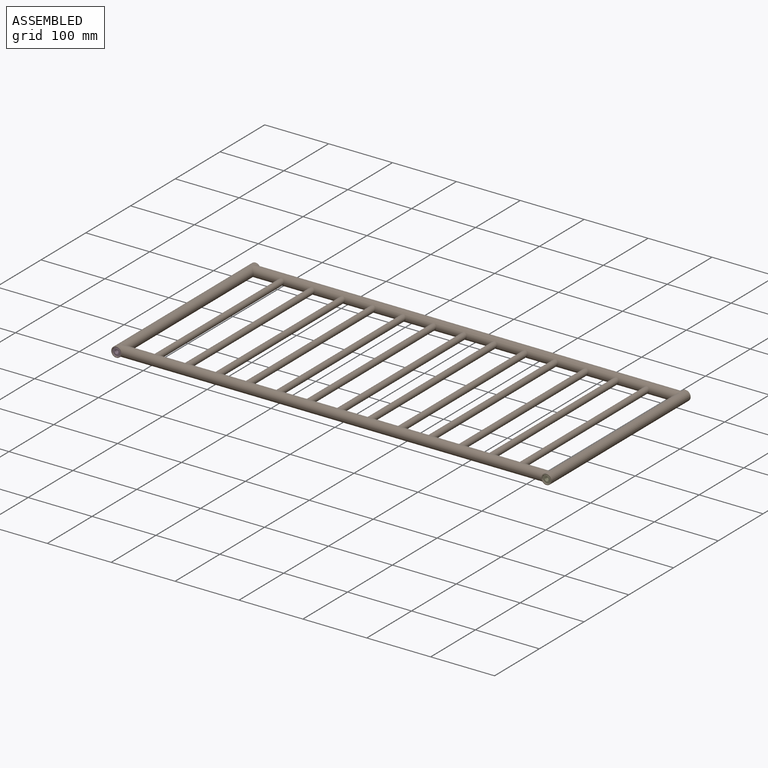
[diagram: assembled view]
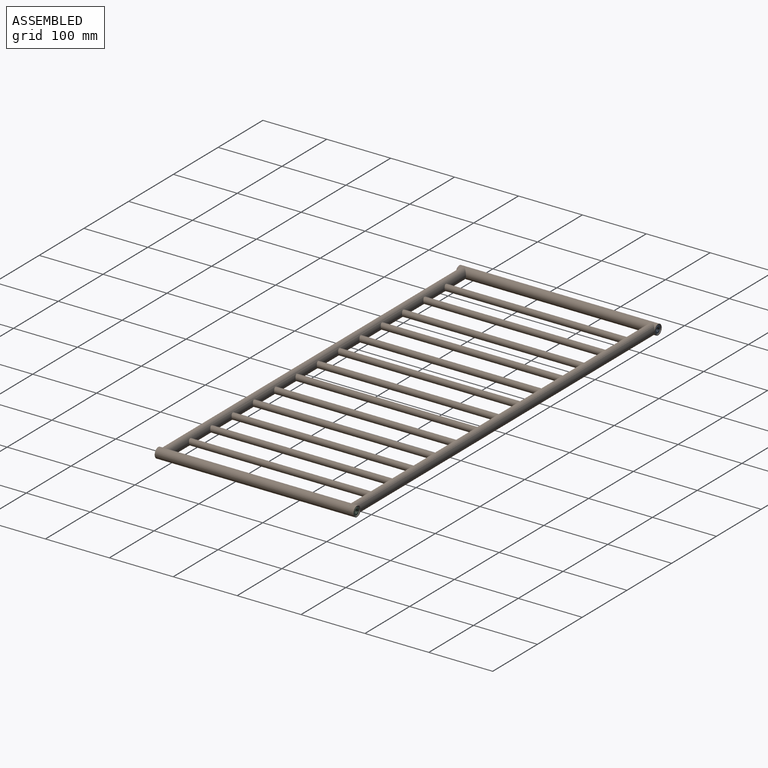
[diagram: assembled view, second angle]
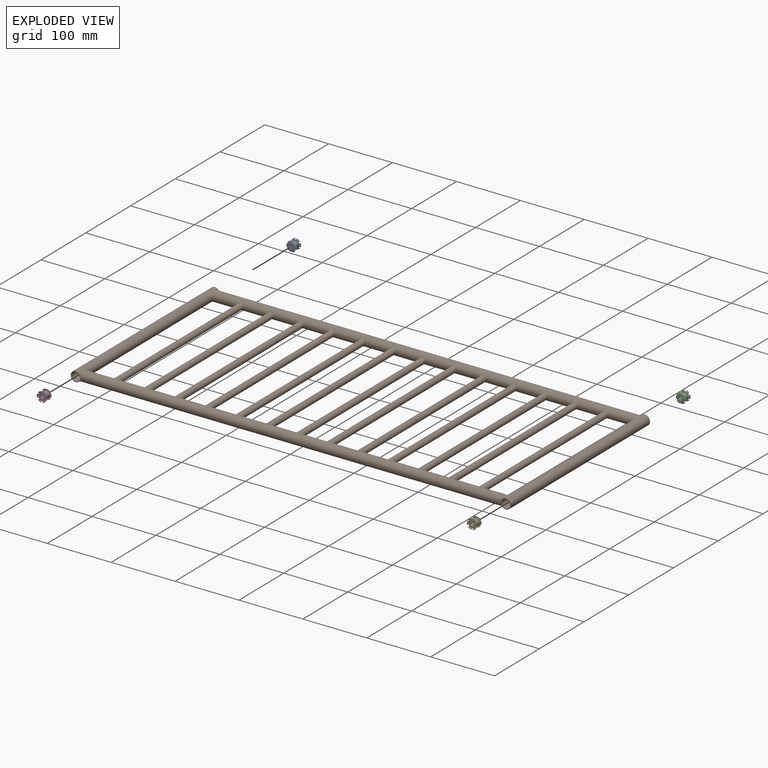
[diagram: exploded view]
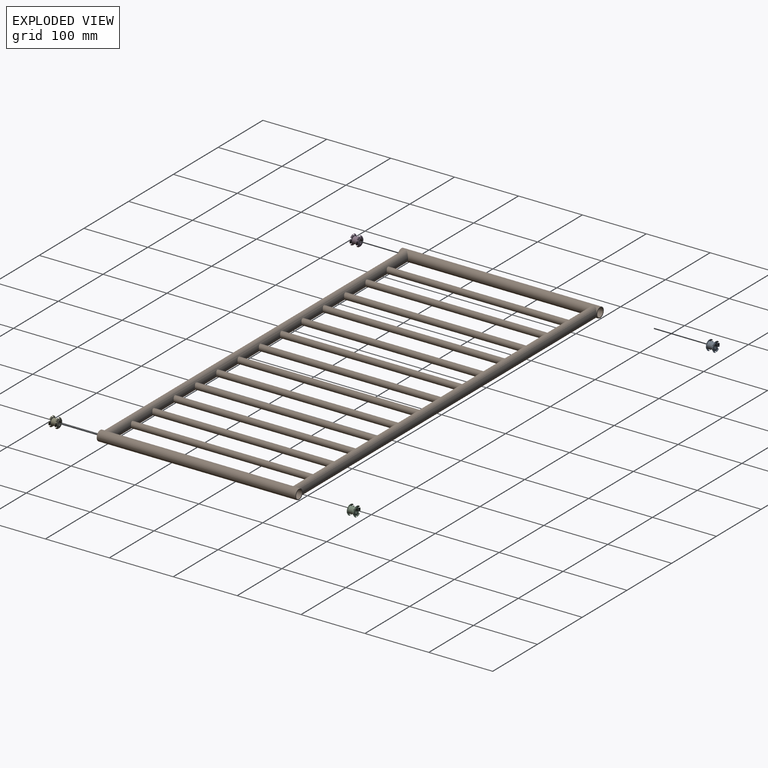
[diagram: exploded view, second angle]
ASSEMBLY  parts=5 mates=4
PART A: 67 faces, bbox 17.3x17.3x12.8 mm
  f0: cylinder r=0.88mm len=1.51mm, axis (0,0,1), area 1.6mm2, adj f8,f9,f65,f66
  f1: cylinder r=0.88mm len=1.51mm, axis (0,0,1), area 1.6mm2, adj f6,f7,f63,f64
  f2: cylinder r=0.88mm len=1.51mm, axis (0,0,1), area 1.6mm2, adj f8,f9,f43,f44
  f3: cylinder r=0.88mm len=1.51mm, axis (0,0,1), area 1.6mm2, adj f6,f7,f41,f42
  f4: cylinder r=0.88mm len=1.7mm, axis (0,0,1), area 1.6mm2, adj f8,f9,f39,f40
  f5: cylinder r=0.88mm len=1.7mm, axis (0,0,1), area 1.6mm2, adj f6,f7,f37,f38
  f6: torus R=5.84mm, axis (0,0,-1), area 71.2mm2, adj f1,f3,f5,f18,f20,f22,f24,f26
  f7: torus R=5.84mm, axis (0,0,-1), area 107.1mm2, adj f1,f3,f5,f18,f20,f22,f24,f26
  f8: torus R=5.84mm, axis (0,0,-1), area 71.2mm2, adj f0,f2,f4,f17,f19,f21,f23,f25
  f9: torus R=5.84mm, axis (0,0,-1), area 107.1mm2, adj f0,f2,f4,f17,f19,f21,f23,f25
  f10: cone r=3.17mm half-angle=45deg, axis (0,0,1), area 10.5mm2, adj f16,f27,f28,f30
  f11: cone r=3.17mm half-angle=45deg, axis (0,0,-1), area 10.5mm2, adj f16,f27,f28,f29
  f12: cylinder r=5.08mm len=10.16mm, axis (0,0,-1), area 18.2mm2, adj f29,f35
  f13: cylinder r=5.08mm len=10.16mm, axis (0,0,-1), area 286.2mm2, adj f32,f34
  f14: cylinder r=5.08mm len=10.16mm, axis (0,0,-1), area 18.2mm2, adj f30,f31
  f15: cylinder r=3.17mm len=11.43mm, axis (0,0,-1), area 28.5mm2, adj f27,f28,f29,f30
  f16: cylinder r=2.35mm len=9.78mm, axis (0,0,-1), area 18mm2, adj f10,f11,f27,f28
  f17: cone r=7.94mm half-angle=85.2deg, axis (0,0,1), area 3.8mm2, adj f8,f9,f62,f65
  f18: cone r=7.94mm half-angle=85.2deg, axis (0,0,1), area 3.8mm2, adj f6,f7,f58,f63
  f19: cone r=7.94mm half-angle=85.2deg, axis (0,0,1), area 3.8mm2, adj f8,f9,f56,f61
  f20: cone r=7.94mm half-angle=85.2deg, axis (0,0,1), area 3.8mm2, adj f6,f7,f52,f57
  f21: cone r=7.94mm half-angle=85.2deg, axis (0,0,1), area 3.8mm2, adj f8,f9,f50,f55
  f22: cone r=7.94mm half-angle=85.2deg, axis (0,0,1), area 3.8mm2, adj f6,f7,f46,f51
  f23: cone r=7.94mm half-angle=85.2deg, axis (0,0,1), area 3.8mm2, adj f8,f9,f44,f49
  f24: cone r=7.94mm half-angle=85.2deg, axis (0,0,1), area 3.8mm2, adj f6,f7,f42,f45
  f25: cone r=7.94mm half-angle=85.2deg, axis (0,0,1), area 3.8mm2, adj f8,f9,f40,f43
  f26: cone r=7.94mm half-angle=85.2deg, axis (0,0,1), area 3.8mm2, adj f6,f7,f38,f41
  f27: bspline ~11.91x7.33mm, area 138.8mm2, adj f10,f11,f15,f16
  f28: bspline ~12.12x7.33mm, area 138.9mm2, adj f10,f11,f15,f16
  f29: plane 10.16x10.16mm, normal (0,0,-1), area 49.4mm2, adj f11,f12,f15
  f30: plane 10.16x10.16mm, normal (0,0,1), area 49.4mm2, adj f10,f14,f15
  f31: plane 11.68x11.68mm, normal (0,0,1), area 26.1mm2, adj f9,f14
  f32: plane 11.68x11.68mm, normal (0,0,-1), area 26.1mm2, adj f8,f13
  f33: cone r=7.94mm half-angle=85.2deg, axis (0,0,1), area 3.8mm2, adj f8,f9,f39,f66
  f34: plane 11.68x11.68mm, normal (0,0,1), area 26.1mm2, adj f7,f13
  f35: plane 11.68x11.68mm, normal (0,0,-1), area 26.1mm2, adj f6,f12
  f36: cone r=7.94mm half-angle=85.2deg, axis (0,0,1), area 3.8mm2, adj f6,f7,f37,f64
  f37: plane 1.86x1.26mm, normal (0.97,0.26,0), area 1.1mm2, adj f5,f6,f7,f36
  f38: plane 1.86x1.26mm, normal (-0.97,0.26,0), area 1.1mm2, adj f5,f6,f7,f26
  f39: plane 1.86x1.26mm, normal (0.97,0.26,0), area 1.1mm2, adj f4,f8,f9,f33
  f40: plane 1.86x1.26mm, normal (-0.97,0.26,0), area 1.1mm2, adj f4,f8,f9,f25
  f41: plane 1.86x0.94mm, normal (0.71,-0.71,0), area 1.1mm2, adj f3,f6,f7,f26
  f42: plane 1.86x1.26mm, normal (-0.26,0.97,0), area 1.1mm2, adj f3,f6,f7,f24
  f43: plane 1.86x0.94mm, normal (0.71,-0.71,0), area 1.1mm2, adj f2,f8,f9,f25
  f44: plane 1.86x1.26mm, normal (-0.26,0.97,0), area 1.1mm2, adj f2,f8,f9,f23
  f45: plane 1.86x1.26mm, normal (-0.26,-0.97,0), area 1.1mm2, adj f6,f7,f24,f47
  f46: plane 1.86x0.94mm, normal (0.71,0.71,0), area 1.1mm2, adj f6,f7,f22,f47
  f47: cylinder r=0.88mm len=1.51mm, axis (0,0,1), area 1.8mm2, adj f6,f7,f45,f46
  f48: cylinder r=0.88mm len=1.51mm, axis (0,0,1), area 1.8mm2, adj f8,f9,f49,f50
  f49: plane 1.86x1.26mm, normal (-0.26,-0.97,0), area 1.1mm2, adj f8,f9,f23,f48
  f50: plane 1.86x0.94mm, normal (0.71,0.71,0), area 1.1mm2, adj f8,f9,f21,f48
  f51: plane 1.86x1.26mm, normal (-0.97,-0.26,0), area 1.1mm2, adj f6,f7,f22,f53
  f52: plane 1.86x1.26mm, normal (0.97,-0.26,0), area 1.1mm2, adj f6,f7,f20,f53
  f53: cylinder r=0.88mm len=1.7mm, axis (0,0,1), area 1.6mm2, adj f6,f7,f51,f52
  f54: cylinder r=0.88mm len=1.7mm, axis (0,0,1), area 1.6mm2, adj f8,f9,f55,f56
  f55: plane 1.86x1.26mm, normal (-0.97,-0.26,0), area 1.1mm2, adj f8,f9,f21,f54
  f56: plane 1.86x1.26mm, normal (0.97,-0.26,0), area 1.1mm2, adj f8,f9,f19,f54
  f57: plane 1.86x0.94mm, normal (-0.71,0.71,0), area 1.1mm2, adj f6,f7,f20,f59
  f58: plane 1.86x1.26mm, normal (0.26,-0.97,0), area 1.1mm2, adj f6,f7,f18,f59
  f59: cylinder r=0.88mm len=1.51mm, axis (0,0,1), area 1.8mm2, adj f6,f7,f57,f58
  f60: cylinder r=0.88mm len=1.51mm, axis (0,0,1), area 1.8mm2, adj f8,f9,f61,f62
  f61: plane 1.86x0.94mm, normal (-0.71,0.71,0), area 1.1mm2, adj f8,f9,f19,f60
  f62: plane 1.86x1.26mm, normal (0.26,-0.97,0), area 1.1mm2, adj f8,f9,f17,f60
  f63: plane 1.86x1.26mm, normal (0.26,0.97,0), area 1.1mm2, adj f1,f6,f7,f18
  f64: plane 1.86x0.94mm, normal (-0.71,-0.71,0), area 1.1mm2, adj f1,f6,f7,f36
  f65: plane 1.86x1.26mm, normal (0.26,0.97,0), area 1.1mm2, adj f0,f8,f9,f17
  f66: plane 1.86x0.94mm, normal (-0.71,-0.71,0), area 1.1mm2, adj f0,f8,f9,f33
PART B: 72 faces, bbox 689x311.2x15.9 mm
  f0: cylinder r=7.94mm len=7.94mm, axis (0,-1,0), area 36mm2, adj f1,f3,f5
  f1: cylinder r=7.94mm len=311.15mm, axis (0,-1,0), area 14942mm2, adj f0,f2,f3,f5,f25,f26
  f2: cylinder r=7.94mm len=7.94mm, axis (0,-1,0), area 36mm2, adj f1,f25,f26
  f3: plane 15.88x15.88mm, normal (0,1,0), area 57.2mm2, adj f0,f1,f4
  f4: cylinder r=6.69mm len=311.15mm, axis (0,-1,0), area 13084.7mm2, adj f3,f26
  f5: cylinder r=7.94mm len=673.1mm, axis (1,0,0), area 32059.9mm2, adj f0,f1,f6,f7,f8,f9,f10,f11
  f6: cylinder r=4.76mm len=282.58mm, axis (0,1,0), area 8407.1mm2, adj f5,f25
  f7: cylinder r=4.76mm len=282.58mm, axis (0,1,0), area 8407.1mm2, adj f5,f25
  f8: cylinder r=4.76mm len=282.58mm, axis (0,1,0), area 8407.1mm2, adj f5,f25
  f9: cylinder r=4.76mm len=282.58mm, axis (0,1,0), area 8407.1mm2, adj f5,f25
  f10: cylinder r=4.76mm len=282.58mm, axis (0,1,0), area 8407.1mm2, adj f5,f25
  f11: cylinder r=4.76mm len=282.58mm, axis (0,1,0), area 8407.1mm2, adj f5,f25
  f12: cylinder r=4.76mm len=282.58mm, axis (0,1,0), area 8407.1mm2, adj f5,f25
  f13: cylinder r=4.76mm len=282.58mm, axis (0,1,0), area 8407.1mm2, adj f5,f25
  f14: cylinder r=4.76mm len=282.58mm, axis (0,1,0), area 8407.1mm2, adj f5,f25
  f15: cylinder r=4.76mm len=282.58mm, axis (0,1,0), area 8407.1mm2, adj f5,f25
  f16: cylinder r=4.76mm len=282.58mm, axis (0,1,0), area 8407.1mm2, adj f5,f25
  f17: cylinder r=4.76mm len=282.58mm, axis (0,1,0), area 8407.1mm2, adj f5,f25
  f18: cylinder r=4.76mm len=282.58mm, axis (0,1,0), area 8407.1mm2, adj f5,f25
  f19: cylinder r=7.94mm len=311.15mm, axis (0,-1,0), area 14942mm2, adj f5,f20,f21,f22,f24,f25
  f20: cylinder r=7.94mm len=7.94mm, axis (0,-1,0), area 36mm2, adj f5,f19,f22
  f21: cylinder r=7.94mm len=7.94mm, axis (0,-1,0), area 36mm2, adj f19,f24,f25
  f22: plane 15.88x15.88mm, normal (0,1,0), area 57.2mm2, adj f19,f20,f23
  f23: cylinder r=6.69mm len=311.15mm, axis (0,-1,0), area 13084.7mm2, adj f22,f24
  f24: plane 15.88x15.88mm, normal (0,-1,0), area 57.2mm2, adj f19,f21,f23
  f25: cylinder r=7.94mm len=673.1mm, axis (1,0,0), area 32089.4mm2, adj f1,f2,f6,f7,f8,f9,f10,f11
  f26: plane 15.88x15.88mm, normal (0,-1,0), area 57.2mm2, adj f1,f2,f4
  f27: cylinder r=7.94mm len=7.75mm, axis (1,0,0), area 48.6mm2, adj f28
  f28: cylinder r=3.87mm len=281.42mm, axis (0,1,0), area 6849.1mm2, adj f27,f29
  f29: cylinder r=7.94mm len=7.75mm, axis (1,0,0), area 48.7mm2, adj f28
  f30: cylinder r=7.94mm len=7.75mm, axis (1,0,0), area 48.6mm2, adj f31
  f31: cylinder r=3.87mm len=281.42mm, axis (0,1,0), area 6849.1mm2, adj f30,f32
  f32: cylinder r=7.94mm len=7.75mm, axis (1,0,0), area 48.7mm2, adj f31
  f33: cylinder r=7.94mm len=7.75mm, axis (1,0,0), area 48.6mm2, adj f34
  f34: cylinder r=3.87mm len=281.42mm, axis (0,1,0), area 6849.1mm2, adj f33,f35
  f35: cylinder r=7.94mm len=7.75mm, axis (1,0,0), area 48.7mm2, adj f34
  f36: cylinder r=7.94mm len=7.75mm, axis (1,0,0), area 48.6mm2, adj f37
  f37: cylinder r=3.87mm len=281.42mm, axis (0,1,0), area 6849.1mm2, adj f36,f38
  f38: cylinder r=7.94mm len=7.75mm, axis (1,0,0), area 48.7mm2, adj f37
  f39: cylinder r=7.94mm len=7.75mm, axis (1,0,0), area 48.6mm2, adj f40
  f40: cylinder r=3.87mm len=281.42mm, axis (0,1,0), area 6849.1mm2, adj f39,f41
  f41: cylinder r=7.94mm len=7.75mm, axis (1,0,0), area 48.7mm2, adj f40
  f42: cylinder r=7.94mm len=7.75mm, axis (1,0,0), area 48.6mm2, adj f43
  f43: cylinder r=3.87mm len=281.42mm, axis (0,1,0), area 6849.1mm2, adj f42,f44
  f44: cylinder r=7.94mm len=7.75mm, axis (1,0,0), area 48.7mm2, adj f43
  f45: cylinder r=7.94mm len=7.75mm, axis (1,0,0), area 48.6mm2, adj f46
  f46: cylinder r=3.87mm len=281.42mm, axis (0,1,0), area 6849.1mm2, adj f45,f47
  f47: cylinder r=7.94mm len=7.75mm, axis (1,0,0), area 48.7mm2, adj f46
  f48: cylinder r=7.94mm len=7.75mm, axis (1,0,0), area 48.6mm2, adj f49
  f49: cylinder r=3.87mm len=281.42mm, axis (0,1,0), area 6849.1mm2, adj f48,f50
  f50: cylinder r=7.94mm len=7.75mm, axis (1,0,0), area 48.7mm2, adj f49
  f51: cylinder r=7.94mm len=7.75mm, axis (1,0,0), area 48.6mm2, adj f52
  f52: cylinder r=3.87mm len=281.42mm, axis (0,1,0), area 6849.1mm2, adj f51,f53
  f53: cylinder r=7.94mm len=7.75mm, axis (1,0,0), area 48.7mm2, adj f52
  f54: cylinder r=7.94mm len=7.75mm, axis (1,0,0), area 48.6mm2, adj f55
  f55: cylinder r=3.87mm len=281.42mm, axis (0,1,0), area 6849.1mm2, adj f54,f56
  f56: cylinder r=7.94mm len=7.75mm, axis (1,0,0), area 48.7mm2, adj f55
  f57: cylinder r=7.94mm len=7.75mm, axis (1,0,0), area 48.6mm2, adj f58
  f58: cylinder r=3.87mm len=281.42mm, axis (0,1,0), area 6849.1mm2, adj f57,f59
  f59: cylinder r=7.94mm len=7.75mm, axis (1,0,0), area 48.7mm2, adj f58
  f60: cylinder r=7.94mm len=7.75mm, axis (1,0,0), area 48.6mm2, adj f61
  f61: cylinder r=3.87mm len=281.42mm, axis (0,1,0), area 6849.1mm2, adj f60,f62
  f62: cylinder r=7.94mm len=7.75mm, axis (1,0,0), area 48.7mm2, adj f61
  f63: cylinder r=7.94mm len=7.75mm, axis (1,0,0), area 48.6mm2, adj f64
  f64: cylinder r=3.87mm len=281.42mm, axis (0,1,0), area 6849.1mm2, adj f63,f65
  f65: cylinder r=7.94mm len=7.75mm, axis (1,0,0), area 48.7mm2, adj f64
  f66: cylinder r=7.94mm len=13.39mm, axis (0,-1,0), area 158.9mm2, adj f68
  f67: cylinder r=7.94mm len=13.39mm, axis (0,-1,0), area 158.9mm2, adj f68
  f68: cylinder r=6.69mm len=664.57mm, axis (1,0,0), area 27780.8mm2, adj f66,f67
  f69: cylinder r=7.94mm len=13.39mm, axis (0,1,0), area 158.9mm2, adj f71
  f70: cylinder r=7.94mm len=13.39mm, axis (0,1,0), area 158.9mm2, adj f71
  f71: cylinder r=6.69mm len=664.57mm, axis (1,0,0), area 27780.8mm2, adj f69,f70
PART C: same geometry as A
PART D: same geometry as A
PART E: same geometry as A
PLACE A rot(axis=(1,0,0),90deg) t=(-336.55,296.78,0)mm
PLACE B t=(0,147.64,-411.87)mm
PLACE C rot(axis=(1,0,0),90deg) t=(336.55,296.78,0)mm
PLACE D rot(axis=(-1,0,0),90deg) t=(-336.55,-1.5,0)mm
PLACE E rot(axis=(-1,0,0),90deg) t=(336.55,-1.5,0)mm
MATE fastened B.f19 <-> C.f6  axis (0,1,0) through (336.55,303.21,0)mm
MATE fastened B.f0 <-> D.f6  axis (0,-1,0) through (-336.55,-7.94,0)mm
MATE fastened B.f19 <-> E.f6  axis (0,-1,0) through (336.55,-7.94,0)mm
MATE fastened A.f6 <-> B.f0  axis (0,-1,0) through (-336.55,303.21,0)mm
